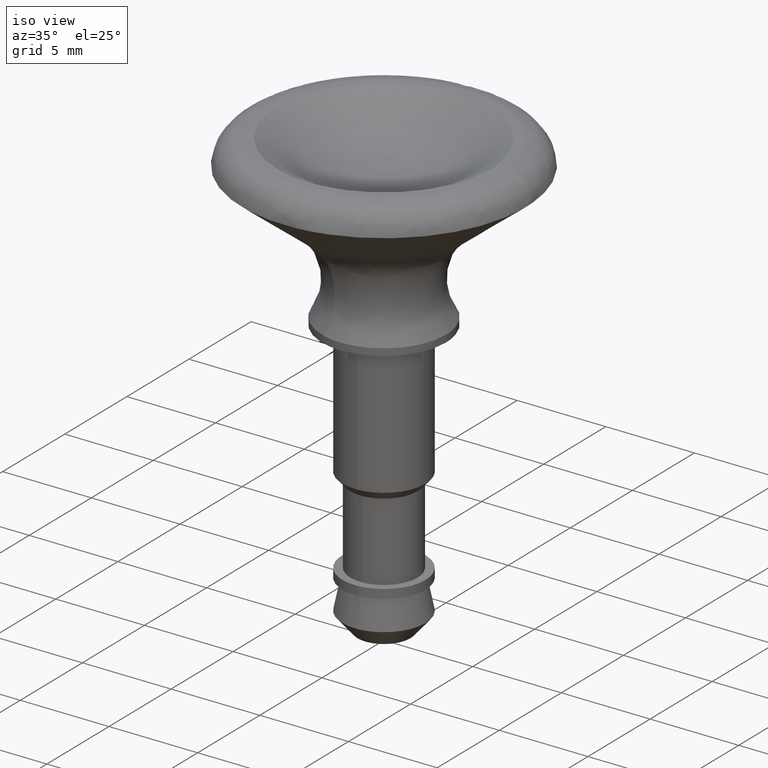
[diagram: clean part render]
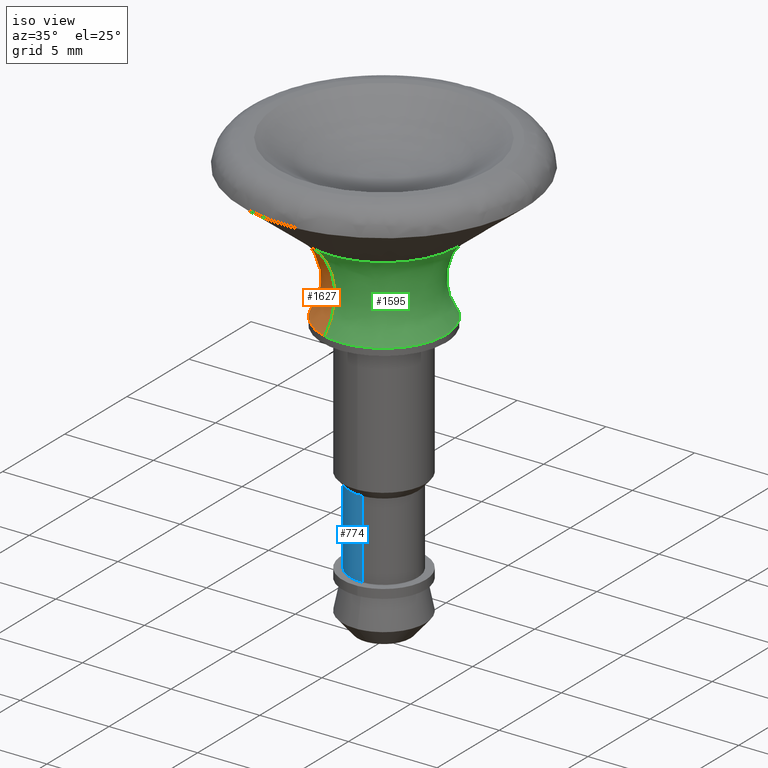
[diagram: same view with three faces highlighted in distinct colors, each labeled with its STEP entity id]
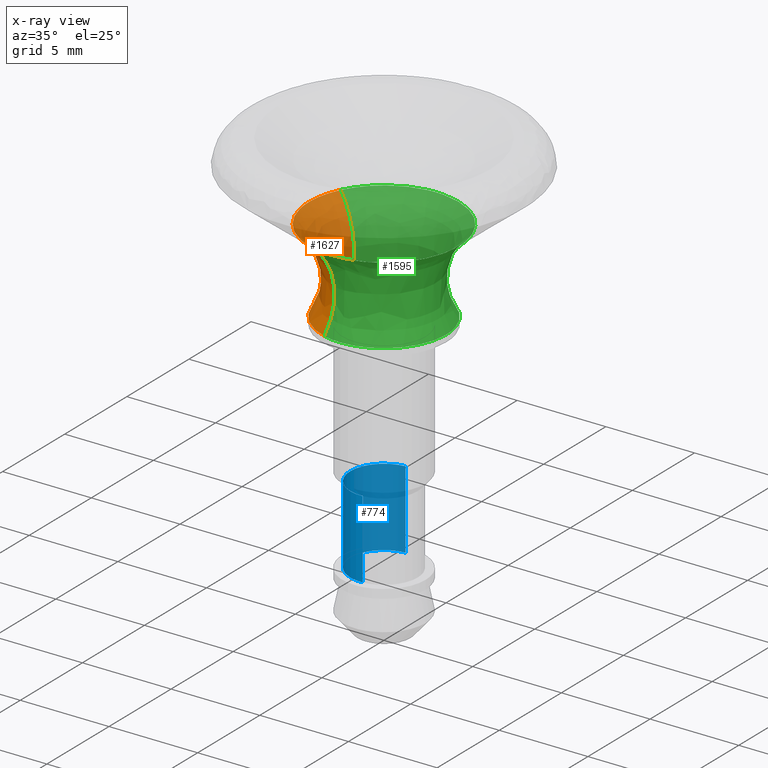
[diagram: x-ray of the same camera — body ghosted, the three highlighted faces saturated]
A machine part, iso view with three faces highlighted in distinct colors.
The next image is the same camera in x-ray (body ghosted, the three faces saturated) — at least one of them is partly hidden behind the body in this view.
Their STEP definitions:

[orange] entity #1627 — the highlighted face is a freeform B-spline surface patch.
#1107=CARTESIAN_POINT('',(-0.997566883735898,-3.354829059136927,0.399404462662841));
#1108=VERTEX_POINT('',#1107);
#1124=CARTESIAN_POINT('',(-3.500000000000000,0.0,0.399408205773472));
#1125=VERTEX_POINT('',#1124);
#1126=CARTESIAN_POINT('',(-0.997566883735898,-3.354829059136927,0.399404462662841));
#1127=CARTESIAN_POINT('',(-3.500000360417596,-2.610722832865418,0.399406334218156));
#1128=CARTESIAN_POINT('',(-3.500000000000000,0.0,0.399408205773472));
#1136=(BOUNDED_CURVE()B_SPLINE_CURVE(2,(#1126,#1127,#1128),.UNSPECIFIED.,.F.,.U.)B_SPLINE_CURVE_WITH_KNOTS((3,3),(0.798526601958610,1.0),.UNSPECIFIED.)CURVE()GEOMETRIC_REPRESENTATION_ITEM()RATIONAL_B_SPLINE_CURVE((0.908365948752589,0.763959231769494,1.0))REPRESENTATION_ITEM(''));
#1137=EDGE_CURVE('',#1108,#1125,#1136,.T.);
#1139=CARTESIAN_POINT('',(-3.129216533275979,1.567793377448858,0.399414086500063));
#1140=VERTEX_POINT('',#1139);
#1141=CARTESIAN_POINT('',(-3.500000000000000,0.0,0.399408205773472));
#1142=CARTESIAN_POINT('',(-3.499998223783439,0.827740983115529,0.399411146136767));
#1143=CARTESIAN_POINT('',(-3.129216533275980,1.567793377448858,0.399414086500063));
#1151=(BOUNDED_CURVE()B_SPLINE_CURVE(2,(#1141,#1142,#1143),.UNSPECIFIED.,.F.,.U.)B_SPLINE_CURVE_WITH_KNOTS((3,3),(0.0,0.076154426727740),.UNSPECIFIED.)CURVE()GEOMETRIC_REPRESENTATION_ITEM()RATIONAL_B_SPLINE_CURVE((1.0,0.910779539315276,0.875915342917192))REPRESENTATION_ITEM(''));
#1152=EDGE_CURVE('',#1125,#1140,#1151,.T.);
#1310=CARTESIAN_POINT('',(-3.774731242995889,1.891213378364719,5.098999999939057));
#1311=VERTEX_POINT('',#1310);
#1327=CARTESIAN_POINT('',(-4.222000000000000,0.0,5.098999999999791));
#1328=VERTEX_POINT('',#1327);
#1329=CARTESIAN_POINT('',(-4.222000000000000,0.0,5.098999999999791));
#1330=CARTESIAN_POINT('',(-4.222000000000002,0.998495840495915,5.098999999999792));
#1331=CARTESIAN_POINT('',(-3.774731242995889,1.891213378364719,5.098999999939057));
#1339=(BOUNDED_CURVE()B_SPLINE_CURVE(2,(#1329,#1330,#1331),.UNSPECIFIED.,.F.,.U.)B_SPLINE_CURVE_WITH_KNOTS((3,3),(0.0,0.076154610387945),.UNSPECIFIED.)CURVE()GEOMETRIC_REPRESENTATION_ITEM()RATIONAL_B_SPLINE_CURVE((1.0,0.910779324143961,0.875915174754849))REPRESENTATION_ITEM(''));
#1340=EDGE_CURVE('',#1328,#1311,#1339,.T.);
#1342=CARTESIAN_POINT('',(-1.203351326187270,-4.046878993161892,5.098999999955693));
#1343=VERTEX_POINT('',#1342);
#1344=CARTESIAN_POINT('',(-1.203351326187270,-4.046878993161892,5.098999999955693));
#1345=CARTESIAN_POINT('',(-4.222000000000000,-3.149274965215932,5.098999999999791));
#1346=CARTESIAN_POINT('',(-4.222000000000000,0.0,5.098999999999791));
#1354=(BOUNDED_CURVE()B_SPLINE_CURVE(2,(#1344,#1345,#1346),.UNSPECIFIED.,.F.,.U.)B_SPLINE_CURVE_WITH_KNOTS((3,3),(0.798526662068842,1.0),.UNSPECIFIED.)CURVE()GEOMETRIC_REPRESENTATION_ITEM()RATIONAL_B_SPLINE_CURVE((0.908365862584212,0.763959302193011,1.0))REPRESENTATION_ITEM(''));
#1355=EDGE_CURVE('',#1343,#1328,#1354,.T.);
#1560=CARTESIAN_POINT('',(-3.129216533275979,1.567793377448859,0.399414086500063));
#1561=CARTESIAN_POINT('',(-1.507959943233401,0.755514782807410,3.083257110274239));
#1562=CARTESIAN_POINT('',(-3.774731242995890,1.891213378364719,5.098999999939057));
#1570=(BOUNDED_CURVE()B_SPLINE_CURVE(2,(#1560,#1561,#1562),.UNSPECIFIED.,.F.,.U.)B_SPLINE_CURVE_WITH_KNOTS((3,3),(-1.716609628168928,-0.279914672506746),.UNSPECIFIED.)CURVE()GEOMETRIC_REPRESENTATION_ITEM()RATIONAL_B_SPLINE_CURVE((0.833550409035595,0.612198644132615,0.834624009151292))REPRESENTATION_ITEM(''));
#1571=EDGE_CURVE('',#1140,#1311,#1570,.T.);
#1577=CARTESIAN_POINT('',(-0.997566883735898,-3.354829059136927,0.399404462662841));
#1578=CARTESIAN_POINT('',(-0.480721119879357,-1.616670813284576,3.083250401651951));
#1579=CARTESIAN_POINT('',(-1.203351326187270,-4.046878993161892,5.098999999955693));
#1587=(BOUNDED_CURVE()B_SPLINE_CURVE(2,(#1577,#1578,#1579),.UNSPECIFIED.,.F.,.U.)B_SPLINE_CURVE_WITH_KNOTS((3,3),(-1.716613135412985,-0.279914672490580),.UNSPECIFIED.)CURVE()GEOMETRIC_REPRESENTATION_ITEM()RATIONAL_B_SPLINE_CURVE((0.888514127667537,0.652565160619895,0.889657366743210))REPRESENTATION_ITEM(''));
#1588=EDGE_CURVE('',#1108,#1343,#1587,.T.);
#1596=CARTESIAN_POINT('',(-1.036804995532831,-3.486782509252224,0.209677490706457));
#1597=CARTESIAN_POINT('',(-4.523587504785054,-2.449977513719393,0.209677490706457));
#1598=CARTESIAN_POINT('',(-3.486782509252224,1.036804995532831,0.209677490706457));
#1599=CARTESIAN_POINT('',(-3.395602038030573,1.343445563055982,0.209677490706457));
#1600=CARTESIAN_POINT('',(-3.252300855827026,1.629464945549876,0.209677490706457));
#1601=CARTESIAN_POINT('',(-0.388646852826860,-1.307022105942109,3.132650408479213));
#1602=CARTESIAN_POINT('',(-1.695668958768968,-0.918375253115248,3.132650408479213));
#1603=CARTESIAN_POINT('',(-1.307022105942109,0.388646852826860,3.132650408479213));
#1604=CARTESIAN_POINT('',(-1.272843062310714,0.503591217514908,3.132650408479214));
#1605=CARTESIAN_POINT('',(-1.219126545019865,0.610805721045156,3.132650408479212));
#1606=CARTESIAN_POINT('',(-1.256937794033767,-4.227090662504655,5.238476977363853));
#1607=CARTESIAN_POINT('',(-5.484028456538420,-2.970152868470889,5.238476977363852));
#1608=CARTESIAN_POINT('',(-4.227090662504654,1.256937794033767,5.238476977363853));
#1609=CARTESIAN_POINT('',(-4.116550897698255,1.628683802361720,5.238476977363853));
#1610=CARTESIAN_POINT('',(-3.942824234904938,1.975430368236451,5.238476977363852));
#1618=(BOUNDED_SURFACE()B_SPLINE_SURFACE(2,2,((#1596,#1601,#1606),(#1597,#1602,#1607),(#1598,#1603,#1608),(#1599,#1604,#1609),(#1600,#1605,#1610)),.UNSPECIFIED.,.F.,.F.,.U.)B_SPLINE_SURFACE_WITH_KNOTS((3,2,3),(3,3),(0.0,7.306743787577516,8.183552205896351),(0.0,6.032075880484901),.UNSPECIFIED.)GEOMETRIC_REPRESENTATION_ITEM()RATIONAL_B_SPLINE_SURFACE(((0.913265683283735,0.627756502513760,0.914523127318716),(0.645776357674895,0.443890879861430,0.646665504878992),(0.913265683283735,0.627756502513760,0.914523127318716),(0.881166994822398,0.605692648837231,0.882380243279821),(0.856771984244975,0.588924114993054,0.857951644053339)))REPRESENTATION_ITEM('')SURFACE());
#1619=ORIENTED_EDGE('',*,*,#1152,.F.);
#1620=ORIENTED_EDGE('',*,*,#1137,.F.);
#1621=ORIENTED_EDGE('',*,*,#1588,.T.);
#1622=ORIENTED_EDGE('',*,*,#1355,.T.);
#1623=ORIENTED_EDGE('',*,*,#1340,.T.);
#1624=ORIENTED_EDGE('',*,*,#1571,.F.);
#1625=EDGE_LOOP('',(#1619,#1620,#1621,#1622,#1623,#1624));
#1626=FACE_OUTER_BOUND('',#1625,.T.);
#1627=ADVANCED_FACE('',(#1626),#1618,.F.);

[blue] entity #774 — the highlighted face is a freeform B-spline surface patch.
#592=CARTESIAN_POINT('',(-0.115992225133933,1.896456117000464,-8.0));
#593=VERTEX_POINT('',#592);
#626=CARTESIAN_POINT('',(0.132532253520675,-1.895299525548260,-7.999999999997035));
#627=VERTEX_POINT('',#626);
#641=CARTESIAN_POINT('',(0.115992225133933,-1.896456117000464,-12.400000000000000));
#642=VERTEX_POINT('',#641);
#643=CARTESIAN_POINT('',(0.132532253520675,-1.895299525548260,-7.999999999997035));
#644=CARTESIAN_POINT('',(0.115992225133933,-1.896456117000464,-12.400000000000000));
#645=QUASI_UNIFORM_CURVE('',1,(#643,#644),.UNSPECIFIED.,.F.,.U.);
#646=EDGE_CURVE('',#627,#642,#645,.T.);
#663=CARTESIAN_POINT('',(-0.115992225133933,1.896456117000464,-12.400000000000000));
#664=VERTEX_POINT('',#663);
#680=CARTESIAN_POINT('',(-0.115992225133933,1.896456117000464,-8.0));
#681=CARTESIAN_POINT('',(-0.115992225133933,1.896456117000464,-12.400000000000000));
#682=QUASI_UNIFORM_CURVE('',1,(#680,#681),.UNSPECIFIED.,.F.,.U.);
#683=EDGE_CURVE('',#593,#664,#682,.T.);
#688=CARTESIAN_POINT('',(0.159035272104546,-1.893823491468481,-7.889999999999999));
#689=CARTESIAN_POINT('',(0.137615390751131,-1.895133587535368,-7.889999999999999));
#690=CARTESIAN_POINT('',(-1.780463891885319,-2.012448342117775,-7.889999999999999));
#691=CARTESIAN_POINT('',(-1.896456117001547,-0.115992225116228,-7.890000000000000));
#692=CARTESIAN_POINT('',(-2.012448342117775,1.780463891885319,-7.889999999999999));
#693=CARTESIAN_POINT('',(-0.102580287315947,1.897276426258707,-7.890000000000000));
#694=CARTESIAN_POINT('',(-0.089246696850553,1.898091943587583,-7.889999999999997));
#695=CARTESIAN_POINT('',(0.159035272104546,-1.893823491468481,-12.512750000000008));
#696=CARTESIAN_POINT('',(0.137615390751131,-1.895133587535368,-12.512750000000002));
#697=CARTESIAN_POINT('',(-1.780463891885319,-2.012448342117775,-12.512750000000002));
#698=CARTESIAN_POINT('',(-1.896456117001547,-0.115992225116228,-12.512750000000000));
#699=CARTESIAN_POINT('',(-2.012448342117775,1.780463891885319,-12.512750000000002));
#700=CARTESIAN_POINT('',(-0.102580287315947,1.897276426258707,-12.512750000000000));
#701=CARTESIAN_POINT('',(-0.089246696850553,1.898091943587583,-12.512750000000000));
#709=(BOUNDED_SURFACE()B_SPLINE_SURFACE(2,1,((#688,#695),(#689,#696),(#690,#697),(#691,#698),(#692,#699),(#693,#700),(#694,#701)),.UNSPECIFIED.,.F.,.F.,.U.)B_SPLINE_SURFACE_WITH_KNOTS((3,1,2,1,3),(2,2),(0.0,0.051001779887963,3.199024853923485,6.347047927959006,6.378625280111240),(0.0,4.622750000000004),.UNSPECIFIED.)GEOMETRIC_REPRESENTATION_ITEM()RATIONAL_B_SPLINE_SURFACE(((1.009490448529306,1.009490448529306),(1.004745224264653,1.004745224264653),(0.707106781186548,0.707106781186548),(1.0,1.0),(0.707106781186548,0.707106781186548),(1.002937968399837,1.002937968399837),(1.005875936799674,1.005875936799674)))REPRESENTATION_ITEM('')SURFACE());
#710=CARTESIAN_POINT('',(-1.900000000000000,0.0,-8.0));
#711=VERTEX_POINT('',#710);
#712=CARTESIAN_POINT('',(-1.900000000000000,0.0,-8.0));
#713=CARTESIAN_POINT('',(-1.900000000000001,1.787341527087385,-8.0));
#714=CARTESIAN_POINT('',(-0.115992225133933,1.896456117000464,-8.000000000000002));
#722=(BOUNDED_CURVE()B_SPLINE_CURVE(2,(#712,#713,#714),.UNSPECIFIED.,.F.,.U.)B_SPLINE_CURVE_WITH_KNOTS((3,3),(0.0,0.239332962238747),.UNSPECIFIED.)CURVE()GEOMETRIC_REPRESENTATION_ITEM()RATIONAL_B_SPLINE_CURVE((1.0,0.719603993286940,0.976072041666297))REPRESENTATION_ITEM(''));
#723=EDGE_CURVE('',#711,#593,#722,.T.);
#724=ORIENTED_EDGE('',*,*,#723,.T.);
#725=ORIENTED_EDGE('',*,*,#683,.T.);
#726=CARTESIAN_POINT('',(-1.900000000000000,0.0,-12.400000000000000));
#727=VERTEX_POINT('',#726);
#728=CARTESIAN_POINT('',(-1.900000000000000,0.0,-12.400000000000000));
#729=CARTESIAN_POINT('',(-1.900000000000001,1.787341527087385,-12.400000000000000));
#730=CARTESIAN_POINT('',(-0.115992225133933,1.896456117000464,-12.400000000000002));
#738=(BOUNDED_CURVE()B_SPLINE_CURVE(2,(#728,#729,#730),.UNSPECIFIED.,.F.,.U.)B_SPLINE_CURVE_WITH_KNOTS((3,3),(0.0,0.239332962238747),.UNSPECIFIED.)CURVE()GEOMETRIC_REPRESENTATION_ITEM()RATIONAL_B_SPLINE_CURVE((1.0,0.719603993286940,0.976072041666297))REPRESENTATION_ITEM(''));
#739=EDGE_CURVE('',#727,#664,#738,.T.);
#740=ORIENTED_EDGE('',*,*,#739,.F.);
#741=CARTESIAN_POINT('',(0.115992225133933,-1.896456117000464,-12.399999999999999));
#742=CARTESIAN_POINT('',(0.058050250285074,-1.900000000000000,-12.400000000000000));
#743=CARTESIAN_POINT('',(0.0,-1.900000000000000,-12.400000000000000));
#744=CARTESIAN_POINT('',(-1.900000000000000,-1.900000000000000,-12.399999999999999));
#745=CARTESIAN_POINT('',(-1.900000000000000,0.0,-12.400000000000000));
#753=(BOUNDED_CURVE()B_SPLINE_CURVE(2,(#741,#742,#743,#744,#745),.UNSPECIFIED.,.F.,.U.)B_SPLINE_CURVE_WITH_KNOTS((3,2,3),(0.739332962238747,0.750000000000000,1.0),.UNSPECIFIED.)CURVE()GEOMETRIC_REPRESENTATION_ITEM()RATIONAL_B_SPLINE_CURVE((0.976072041666297,0.987502787899607,1.0,0.707106781186547,1.0))REPRESENTATION_ITEM(''));
#754=EDGE_CURVE('',#642,#727,#753,.T.);
#755=ORIENTED_EDGE('',*,*,#754,.F.);
#756=ORIENTED_EDGE('',*,*,#646,.F.);
#757=CARTESIAN_POINT('',(0.132532253520675,-1.895299525548260,-7.999999999997036));
#758=CARTESIAN_POINT('',(0.066344497600043,-1.899929005132298,-7.999999999997083));
#759=CARTESIAN_POINT('',(-0.000004876328981,-1.899930265247286,-7.999999999997136));
#760=CARTESIAN_POINT('',(-1.900002353021910,-1.899966350219257,-7.999999999998617));
#761=CARTESIAN_POINT('',(-1.900000000000000,0.0,-8.0));
#769=(BOUNDED_CURVE()B_SPLINE_CURVE(2,(#757,#758,#759,#760,#761),.UNSPECIFIED.,.F.,.U.)B_SPLINE_CURVE_WITH_KNOTS((3,2,3),(0.737829682995063,0.750000000000000,1.0),.UNSPECIFIED.)CURVE()GEOMETRIC_REPRESENTATION_ITEM()RATIONAL_B_SPLINE_CURVE((0.972871408704998,0.985741586713776,1.0,0.707106781186547,1.0))REPRESENTATION_ITEM(''));
#770=EDGE_CURVE('',#627,#711,#769,.T.);
#771=ORIENTED_EDGE('',*,*,#770,.T.);
#772=EDGE_LOOP('',(#724,#725,#740,#755,#756,#771));
#773=FACE_OUTER_BOUND('',#772,.T.);
#774=ADVANCED_FACE('',(#773),#709,.T.);

[green] entity #1595 — the highlighted face is a freeform B-spline surface patch.
#1090=CARTESIAN_POINT('',(2.633808396240371,2.305006375516256,0.399409391440656));
#1091=VERTEX_POINT('',#1090);
#1092=CARTESIAN_POINT('',(3.500000000000000,0.0,0.399408205773472));
#1093=VERTEX_POINT('',#1092);
#1094=CARTESIAN_POINT('',(2.633808396240371,2.305006375516256,0.399409391440656));
#1095=CARTESIAN_POINT('',(3.500000157857313,1.315254906404875,0.399408467091749));
#1096=CARTESIAN_POINT('',(3.500000000000000,0.0,0.399408205773472));
#1104=(BOUNDED_CURVE()B_SPLINE_CURVE(2,(#1094,#1095,#1096),.UNSPECIFIED.,.F.,.U.)B_SPLINE_CURVE_WITH_KNOTS((3,3),(0.385034299000466,0.500000000000000),.UNSPECIFIED.)CURVE()GEOMETRIC_REPRESENTATION_ITEM()RATIONAL_B_SPLINE_CURVE((0.854497089324159,0.865309303124406,1.0))REPRESENTATION_ITEM(''));
#1105=EDGE_CURVE('',#1091,#1093,#1104,.T.);
#1107=CARTESIAN_POINT('',(-0.997566883735898,-3.354829059136927,0.399404462662841));
#1108=VERTEX_POINT('',#1107);
#1109=CARTESIAN_POINT('',(3.500000000000000,0.0,0.399408205773472));
#1110=CARTESIAN_POINT('',(3.499999731157140,-3.500000904121670,0.399406809742064));
#1111=CARTESIAN_POINT('',(-0.000000629260455,-3.500002116210244,0.399404938186749));
#1112=CARTESIAN_POINT('',(-0.509347125623504,-3.500002292602531,0.399404665823879));
#1113=CARTESIAN_POINT('',(-0.997566883735898,-3.354829059136927,0.399404462662841));
#1121=(BOUNDED_CURVE()B_SPLINE_CURVE(2,(#1109,#1110,#1111,#1112,#1113),.UNSPECIFIED.,.F.,.U.)B_SPLINE_CURVE_WITH_KNOTS((3,2,3),(0.500000000000000,0.750000000000000,0.798526601958610),.UNSPECIFIED.)CURVE()GEOMETRIC_REPRESENTATION_ITEM()RATIONAL_B_SPLINE_CURVE((1.0,0.707106781186547,1.0,0.943147549417054,0.908365948752589))REPRESENTATION_ITEM(''));
#1122=EDGE_CURVE('',#1093,#1108,#1121,.T.);
#1139=CARTESIAN_POINT('',(-3.129216533275979,1.567793377448858,0.399414086500063));
#1140=VERTEX_POINT('',#1139);
#1154=CARTESIAN_POINT('',(0.577666568994843,3.451999297448816,0.399411346690841));
#1155=VERTEX_POINT('',#1154);
#1156=CARTESIAN_POINT('',(-3.129216533275980,1.567793377448858,0.399414086500063));
#1157=CARTESIAN_POINT('',(-2.161147653282197,3.499998350122572,0.399413657116979));
#1158=CARTESIAN_POINT('',(0.000002196287654,3.499998899620655,0.399411841525859));
#1159=CARTESIAN_POINT('',(0.290828600450251,3.499998973566732,0.399411597201368));
#1160=CARTESIAN_POINT('',(0.577666568994843,3.451999297448817,0.399411346690841));
#1168=(BOUNDED_CURVE()B_SPLINE_CURVE(2,(#1156,#1157,#1158,#1159,#1160),.UNSPECIFIED.,.F.,.U.)B_SPLINE_CURVE_WITH_KNOTS((3,2,3),(0.076154426727740,0.250000000000000,0.278400421843544),.UNSPECIFIED.)CURVE()GEOMETRIC_REPRESENTATION_ITEM()RATIONAL_B_SPLINE_CURVE((0.875915342917192,0.796327241871271,1.0,0.966726836122338,0.941013447366236))REPRESENTATION_ITEM(''));
#1169=EDGE_CURVE('',#1140,#1155,#1168,.T.);
#1253=CARTESIAN_POINT('',(0.577666568994843,3.451999297448816,0.399411346690841));
#1254=CARTESIAN_POINT('',(1.810564976599122,3.245683496134340,0.399410269936253));
#1255=CARTESIAN_POINT('',(2.633808396240371,2.305006375516256,0.399409391440656));
#1263=(BOUNDED_CURVE()B_SPLINE_CURVE(2,(#1253,#1254,#1255),.UNSPECIFIED.,.F.,.U.)B_SPLINE_CURVE_WITH_KNOTS((3,3),(0.278400421843544,0.385034299000467),.UNSPECIFIED.)CURVE()GEOMETRIC_REPRESENTATION_ITEM()RATIONAL_B_SPLINE_CURVE((0.941013447366236,0.844468461062460,0.854497089324159))REPRESENTATION_ITEM(''));
#1264=EDGE_CURVE('',#1155,#1091,#1263,.T.);
#1310=CARTESIAN_POINT('',(-3.774731242995889,1.891213378364719,5.098999999939057));
#1311=VERTEX_POINT('',#1310);
#1312=CARTESIAN_POINT('',(-2.349221273785133,3.508054076917791,5.098999999980581));
#1313=VERTEX_POINT('',#1312);
#1314=CARTESIAN_POINT('',(-3.774731242995889,1.891213378364719,5.098999999939057));
#1315=CARTESIAN_POINT('',(-3.275414706615211,2.887814688231312,5.098999999965026));
#1316=CARTESIAN_POINT('',(-2.349221273785133,3.508054076917791,5.098999999980581));
#1324=(BOUNDED_CURVE()B_SPLINE_CURVE(2,(#1314,#1315,#1316),.UNSPECIFIED.,.F.,.U.)B_SPLINE_CURVE_WITH_KNOTS((3,3),(0.076154610387945,0.154565963839794),.UNSPECIFIED.)CURVE()GEOMETRIC_REPRESENTATION_ITEM()RATIONAL_B_SPLINE_CURVE((0.875915174754849,0.840017871536809,0.861746398575290))REPRESENTATION_ITEM(''));
#1325=EDGE_CURVE('',#1311,#1313,#1324,.T.);
#1342=CARTESIAN_POINT('',(-1.203351326187270,-4.046878993161892,5.098999999955693));
#1343=VERTEX_POINT('',#1342);
#1357=CARTESIAN_POINT('',(4.222000000000000,0.0,5.098999999999791));
#1358=VERTEX_POINT('',#1357);
#1359=CARTESIAN_POINT('',(4.222000000000000,0.0,5.098999999999791));
#1360=CARTESIAN_POINT('',(4.222000000000001,-4.222000000000001,5.098999999999790));
#1361=CARTESIAN_POINT('',(0.0,-4.222000000000000,5.098999999999791));
#1362=CARTESIAN_POINT('',(-0.614418145874408,-4.222000000000000,5.098999999999791));
#1363=CARTESIAN_POINT('',(-1.203351326187270,-4.046878993161891,5.098999999955693));
#1371=(BOUNDED_CURVE()B_SPLINE_CURVE(2,(#1359,#1360,#1361,#1362,#1363),.UNSPECIFIED.,.F.,.U.)B_SPLINE_CURVE_WITH_KNOTS((3,2,3),(0.500000000000000,0.750000000000000,0.798526662068843),.UNSPECIFIED.)CURVE()GEOMETRIC_REPRESENTATION_ITEM()RATIONAL_B_SPLINE_CURVE((1.0,0.707106781186547,1.0,0.943147478993535,0.908365862584211))REPRESENTATION_ITEM(''));
#1372=EDGE_CURVE('',#1358,#1343,#1371,.T.);
#1374=CARTESIAN_POINT('',(0.404660767240389,4.202562749510173,5.099000000010536));
#1375=VERTEX_POINT('',#1374);
#1376=CARTESIAN_POINT('',(0.404660767240389,4.202562749510173,5.099000000010536));
#1377=CARTESIAN_POINT('',(4.222000000000000,3.834994787946072,5.098999999999790));
#1378=CARTESIAN_POINT('',(4.222000000000000,0.0,5.098999999999791));
#1386=(BOUNDED_CURVE()B_SPLINE_CURVE(2,(#1376,#1377,#1378),.UNSPECIFIED.,.F.,.U.)B_SPLINE_CURVE_WITH_KNOTS((3,3),(0.266651095242561,0.500000000000000),.UNSPECIFIED.)CURVE()GEOMETRIC_REPRESENTATION_ITEM()RATIONAL_B_SPLINE_CURVE((0.963582689676505,0.726614752716000,1.0))REPRESENTATION_ITEM(''));
#1387=EDGE_CURVE('',#1375,#1358,#1386,.T.);
#1495=CARTESIAN_POINT('',(-2.349221273785133,3.508054076917791,5.098999999980581));
#1496=CARTESIAN_POINT('',(-1.283097390946237,4.222000000000000,5.098999999999791));
#1497=CARTESIAN_POINT('',(0.0,4.222000000000000,5.098999999999791));
#1498=CARTESIAN_POINT('',(0.202797202715852,4.222000000000000,5.098999999999791));
#1499=CARTESIAN_POINT('',(0.404660767240389,4.202562749510173,5.099000000010535));
#1507=(BOUNDED_CURVE()B_SPLINE_CURVE(2,(#1495,#1496,#1497,#1498,#1499),.UNSPECIFIED.,.F.,.U.)B_SPLINE_CURVE_WITH_KNOTS((3,2,3),(0.154565963839794,0.250000000000000,0.266651095242561),.UNSPECIFIED.)CURVE()GEOMETRIC_REPRESENTATION_ITEM()RATIONAL_B_SPLINE_CURVE((0.861746398575290,0.888192071858711,1.0,0.980492028470548,0.963582689676505))REPRESENTATION_ITEM(''));
#1508=EDGE_CURVE('',#1313,#1375,#1507,.T.);
#1530=CARTESIAN_POINT('',(-3.252300574718951,1.629465506622293,0.209677490706457));
#1531=CARTESIAN_POINT('',(-1.886270319871697,4.355967519010713,0.209677490706457));
#1532=CARTESIAN_POINT('',(1.036804995532831,3.486782509252224,0.209677490706457));
#1533=CARTESIAN_POINT('',(4.523587504785056,2.449977513719393,0.209677490706457));
#1534=CARTESIAN_POINT('',(3.486782509252224,-1.036804995532831,0.209677490706457));
#1535=CARTESIAN_POINT('',(2.449977513719395,-4.523587504785053,0.209677490706457));
#1536=CARTESIAN_POINT('',(-1.036804995532830,-3.486782509252224,0.209677490706457));
#1537=CARTESIAN_POINT('',(-1.219126439646368,0.610805931363422,3.132650408479214));
#1538=CARTESIAN_POINT('',(-0.707069339516542,1.632836526225950,3.132650408479213));
#1539=CARTESIAN_POINT('',(0.388646852826860,1.307022105942109,3.132650408479213));
#1540=CARTESIAN_POINT('',(1.695668958768969,0.918375253115248,3.132650408479213));
#1541=CARTESIAN_POINT('',(1.307022105942109,-0.388646852826860,3.132650408479213));
#1542=CARTESIAN_POINT('',(0.918375253115249,-1.695668958768968,3.132650408479213));
#1543=CARTESIAN_POINT('',(-0.388646852826860,-1.307022105942109,3.132650408479213));
#1544=CARTESIAN_POINT('',(-3.942823894112440,1.975431048434879,5.238476977363852));
#1545=CARTESIAN_POINT('',(-2.286760253882112,5.280819660223836,5.238476977363853));
#1546=CARTESIAN_POINT('',(1.256937794033767,4.227090662504654,5.238476977363853));
#1547=CARTESIAN_POINT('',(5.484028456538422,2.970152868470889,5.238476977363852));
#1548=CARTESIAN_POINT('',(4.227090662504654,-1.256937794033767,5.238476977363853));
#1549=CARTESIAN_POINT('',(2.970152868470890,-5.484028456538420,5.238476977363852));
#1550=CARTESIAN_POINT('',(-1.256937794033765,-4.227090662504655,5.238476977363853));
#1558=(BOUNDED_SURFACE()B_SPLINE_SURFACE(2,2,((#1530,#1537,#1544),(#1531,#1538,#1545),(#1532,#1539,#1546),(#1533,#1540,#1547),(#1534,#1541,#1548),(#1535,#1542,#1549),(#1536,#1543,#1550)),.UNSPECIFIED.,.F.,.F.,.U.)B_SPLINE_SURFACE_WITH_KNOTS((3,2,2,3),(3,3),(0.0,6.429934533068211,13.736678320645730,21.043422108223240),(0.0,6.032075880484902),.UNSPECIFIED.)GEOMETRIC_REPRESENTATION_ITEM()RATIONAL_B_SPLINE_SURFACE(((0.856771937715148,0.588924083009588,0.857951597459446),(0.677875076747955,0.465954754579709,0.678808419571759),(0.913265683283735,0.627756502513760,0.914523127318716),(0.645776357674895,0.443890879861430,0.646665504878992),(0.913265683283735,0.627756502513760,0.914523127318716),(0.645776357674895,0.443890879861430,0.646665504878992),(0.913265683283735,0.627756502513760,0.914523127318716)))REPRESENTATION_ITEM('')SURFACE());
#1559=ORIENTED_EDGE('',*,*,#1169,.F.);
#1560=CARTESIAN_POINT('',(-3.129216533275979,1.567793377448859,0.399414086500063));
#1561=CARTESIAN_POINT('',(-1.507959943233401,0.755514782807410,3.083257110274239));
#1562=CARTESIAN_POINT('',(-3.774731242995890,1.891213378364719,5.098999999939057));
#1570=(BOUNDED_CURVE()B_SPLINE_CURVE(2,(#1560,#1561,#1562),.UNSPECIFIED.,.F.,.U.)B_SPLINE_CURVE_WITH_KNOTS((3,3),(-1.716609628168928,-0.279914672506746),.UNSPECIFIED.)CURVE()GEOMETRIC_REPRESENTATION_ITEM()RATIONAL_B_SPLINE_CURVE((0.833550409035595,0.612198644132615,0.834624009151292))REPRESENTATION_ITEM(''));
#1571=EDGE_CURVE('',#1140,#1311,#1570,.T.);
#1572=ORIENTED_EDGE('',*,*,#1571,.T.);
#1573=ORIENTED_EDGE('',*,*,#1325,.T.);
#1574=ORIENTED_EDGE('',*,*,#1508,.T.);
#1575=ORIENTED_EDGE('',*,*,#1387,.T.);
#1576=ORIENTED_EDGE('',*,*,#1372,.T.);
#1577=CARTESIAN_POINT('',(-0.997566883735898,-3.354829059136927,0.399404462662841));
#1578=CARTESIAN_POINT('',(-0.480721119879357,-1.616670813284576,3.083250401651951));
#1579=CARTESIAN_POINT('',(-1.203351326187270,-4.046878993161892,5.098999999955693));
#1587=(BOUNDED_CURVE()B_SPLINE_CURVE(2,(#1577,#1578,#1579),.UNSPECIFIED.,.F.,.U.)B_SPLINE_CURVE_WITH_KNOTS((3,3),(-1.716613135412985,-0.279914672490580),.UNSPECIFIED.)CURVE()GEOMETRIC_REPRESENTATION_ITEM()RATIONAL_B_SPLINE_CURVE((0.888514127667537,0.652565160619895,0.889657366743210))REPRESENTATION_ITEM(''));
#1588=EDGE_CURVE('',#1108,#1343,#1587,.T.);
#1589=ORIENTED_EDGE('',*,*,#1588,.F.);
#1590=ORIENTED_EDGE('',*,*,#1122,.F.);
#1591=ORIENTED_EDGE('',*,*,#1105,.F.);
#1592=ORIENTED_EDGE('',*,*,#1264,.F.);
#1593=EDGE_LOOP('',(#1559,#1572,#1573,#1574,#1575,#1576,#1589,#1590,#1591,#1592));
#1594=FACE_OUTER_BOUND('',#1593,.T.);
#1595=ADVANCED_FACE('',(#1594),#1558,.F.);